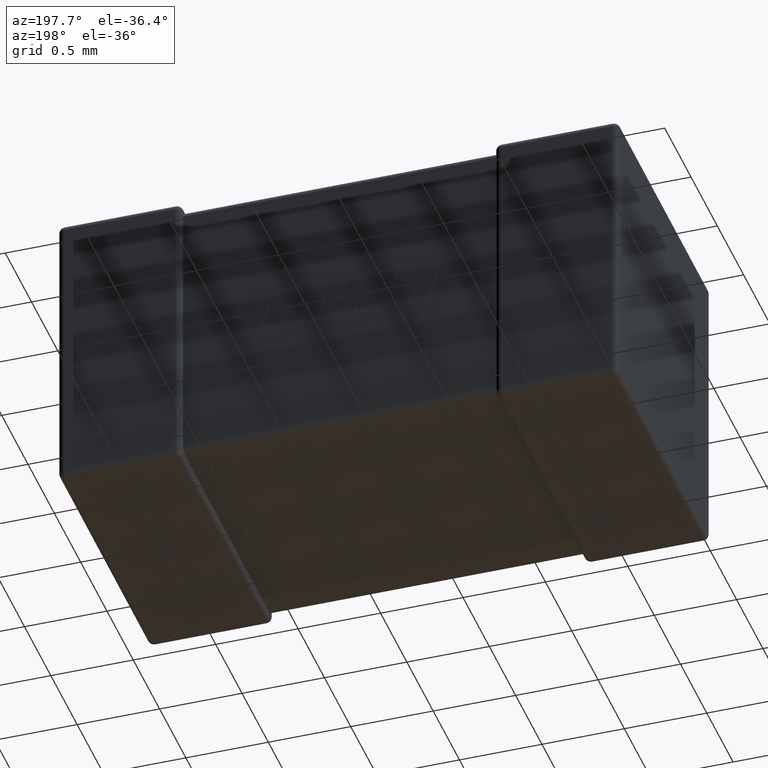
[diagram: clean part render]
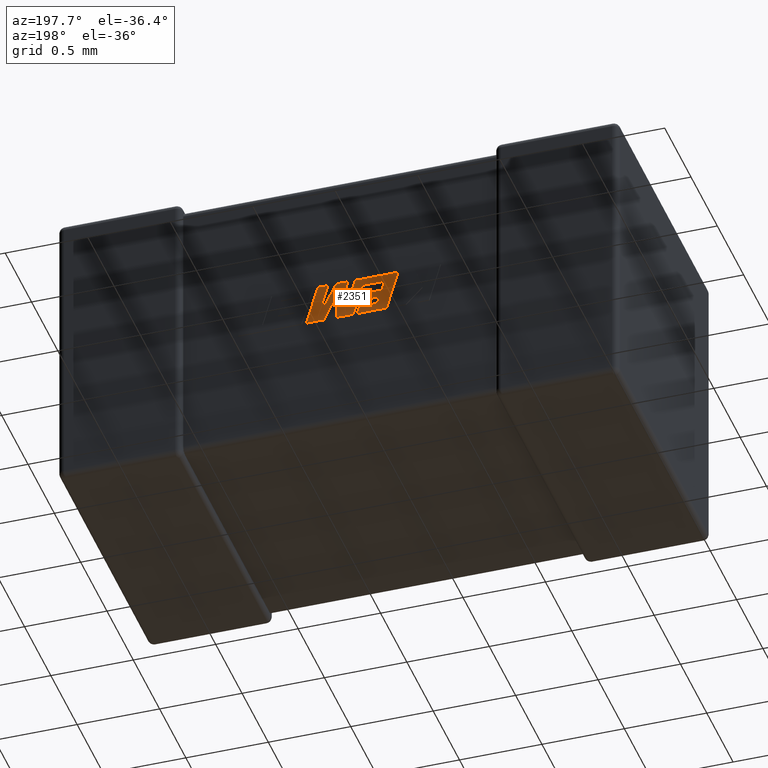
[diagram: same view with one face highlighted and labeled with its STEP entity id]
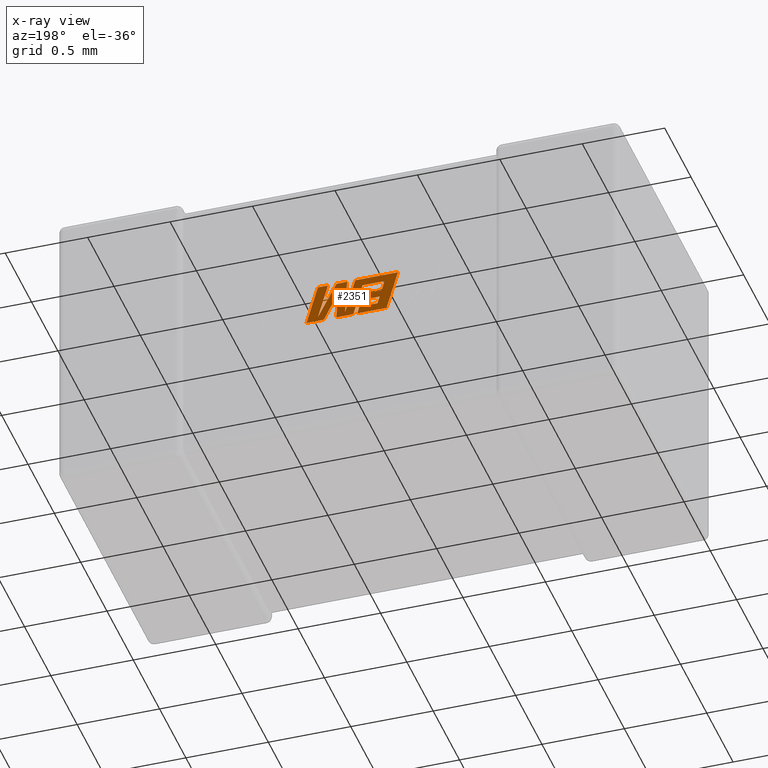
[diagram: x-ray of the same camera — body ghosted, the highlighted face saturated]
A machine part, auxiliary view. The second image highlights one B-rep face of the part: STEP entity #2351.
The next image is the same camera in x-ray: the body ghosted, the highlighted face saturated — about 0% of this face is hidden behind the body in this view.
In plain terms, the highlighted planar face has unit normal (0, -1, 0).
Its self-contained STEP definition (entity closure, byte-faithful):
#21 = CARTESIAN_POINT ( 'NONE',  ( 1.580337707463670000, 1.717560000000000200, -0.9635890723964083400 ) ) ;
#100 = ORIENTED_EDGE ( 'NONE', *, *, #1513, .T. ) ;
#102 = CARTESIAN_POINT ( 'NONE',  ( 1.719205590769775200, 1.717560000000000200, -0.7687799999999998000 ) ) ;
#113 = EDGE_LOOP ( 'NONE', ( #100, #3829, #1203, #4088, #4107, #4353, #212, #1487, #874, #3033, #3250, #3154, #1793, #456, #544, #2512, #4386, #1743, #1193, #4291, #1318, #2064, #3539 ) ) ;
#122 = LINE ( 'NONE', #1679, #1823 ) ;
#157 = VECTOR ( 'NONE', #802, 1000.000000000000000 ) ;
#212 = ORIENTED_EDGE ( 'NONE', *, *, #2875, .T. ) ;
#271 = EDGE_CURVE ( 'NONE', #4204, #4294, #3162, .T. ) ;
#297 = EDGE_CURVE ( 'NONE', #4117, #841, #1607, .T. ) ;
#395 = VECTOR ( 'NONE', #2676, 1000.000000000000200 ) ;
#409 = DIRECTION ( 'NONE',  ( -1.000000000000000000, 0.0000000000000000000, 0.0000000000000000000 ) ) ;
#412 = VECTOR ( 'NONE', #1131, 1000.000000000000000 ) ;
#430 = CARTESIAN_POINT ( 'NONE',  ( 1.580337707463670000, 1.717560000000000200, -0.9635890723964083400 ) ) ;
#456 = ORIENTED_EDGE ( 'NONE', *, *, #887, .T. ) ;
#463 = VECTOR ( 'NONE', #2567, 1000.000000000000200 ) ;
#473 = EDGE_CURVE ( 'NONE', #1529, #2684, #3803, .T. ) ;
#475 = DIRECTION ( 'NONE',  ( 0.0000000000000000000, -1.000000000000000000, 0.0000000000000000000 ) ) ;
#537 = VERTEX_POINT ( 'NONE', #3375 ) ;
#543 = DIRECTION ( 'NONE',  ( -1.000000000000000000, 0.0000000000000000000, 0.0000000000000000000 ) ) ;
#544 = ORIENTED_EDGE ( 'NONE', *, *, #3040, .T. ) ;
#677 = LINE ( 'NONE', #4474, #1706 ) ;
#744 = CARTESIAN_POINT ( 'NONE',  ( 1.457692146891389900, 1.717560000000000200, -0.9188361212786329000 ) ) ;
#773 = EDGE_CURVE ( 'NONE', #2684, #2416, #2508, .T. ) ;
#782 = VERTEX_POINT ( 'NONE', #2200 ) ;
#799 = EDGE_CURVE ( 'NONE', #4380, #3611, #1821, .T. ) ;
#802 = DIRECTION ( 'NONE',  ( 0.4668459304955247000, 0.0000000000000000000, -0.8843386665637592600 ) ) ;
#820 = CARTESIAN_POINT ( 'NONE',  ( 1.667068680722454400, 1.717560000000000200, -0.9829865049792332300 ) ) ;
#837 = VECTOR ( 'NONE', #1353, 1000.000000000000000 ) ;
#841 = VERTEX_POINT ( 'NONE', #744 ) ;
#874 = ORIENTED_EDGE ( 'NONE', *, *, #1225, .T. ) ;
#887 = EDGE_CURVE ( 'NONE', #2416, #1632, #1598, .T. ) ;
#976 = CARTESIAN_POINT ( 'NONE',  ( 1.415592680271959600, 1.717560000000000200, -1.009387468605939600 ) ) ;
#1025 = LINE ( 'NONE', #976, #1970 ) ;
#1042 = CARTESIAN_POINT ( 'NONE',  ( 1.901339830266764100, 1.717560000000000200, -1.009387468605939600 ) ) ;
#1084 = VECTOR ( 'NONE', #2235, 1000.000000000000000 ) ;
#1104 = LINE ( 'NONE', #3995, #2120 ) ;
#1131 = DIRECTION ( 'NONE',  ( 1.000000000000000000, 0.0000000000000000000, 0.0000000000000000000 ) ) ;
#1135 = CARTESIAN_POINT ( 'NONE',  ( 1.470714486032121500, 1.717560000000000200, -0.9635890723964083400 ) ) ;
#1193 = ORIENTED_EDGE ( 'NONE', *, *, #271, .T. ) ;
#1203 = ORIENTED_EDGE ( 'NONE', *, *, #3366, .T. ) ;
#1225 = EDGE_CURVE ( 'NONE', #2076, #4117, #1763, .T. ) ;
#1236 = VERTEX_POINT ( 'NONE', #1662 ) ;
#1302 = CARTESIAN_POINT ( 'NONE',  ( 1.548258857652406600, 1.717560000000000200, -0.8743560540090878900 ) ) ;
#1318 = ORIENTED_EDGE ( 'NONE', *, *, #2921, .T. ) ;
#1353 = DIRECTION ( 'NONE',  ( 1.000000000000000000, 0.0000000000000000000, 0.0000000000000000000 ) ) ;
#1413 = LINE ( 'NONE', #4502, #4394 ) ;
#1432 = CARTESIAN_POINT ( 'NONE',  ( 1.445001950557935200, 1.717560000000000200, -0.8743560540090878900 ) ) ;
#1436 = EDGE_CURVE ( 'NONE', #2967, #4302, #2826, .T. ) ;
#1487 = ORIENTED_EDGE ( 'NONE', *, *, #2735, .T. ) ;
#1491 = VECTOR ( 'NONE', #3794, 999.9999999999998900 ) ;
#1513 = EDGE_CURVE ( 'NONE', #3611, #782, #2268, .T. ) ;
#1529 = VERTEX_POINT ( 'NONE', #1135 ) ;
#1532 = AXIS2_PLACEMENT_3D ( 'NONE', #3704, #475, #1896 ) ;
#1539 = VERTEX_POINT ( 'NONE', #3796 ) ;
#1542 = CARTESIAN_POINT ( 'NONE',  ( 1.427963170861977800, 1.717560000000000200, -0.8145557168552942700 ) ) ;
#1575 = PLANE ( 'NONE',  #1532 ) ;
#1598 = LINE ( 'NONE', #3881, #4195 ) ;
#1607 = LINE ( 'NONE', #1753, #3291 ) ;
#1632 = VERTEX_POINT ( 'NONE', #4152 ) ;
#1662 = CARTESIAN_POINT ( 'NONE',  ( 1.719810770062255800, 1.717560000000000200, -1.009387468605939600 ) ) ;
#1679 = CARTESIAN_POINT ( 'NONE',  ( 1.667068680722454400, 1.717560000000000200, -0.9829865049792332300 ) ) ;
#1706 = VECTOR ( 'NONE', #2338, 1000.000000000000200 ) ;
#1743 = ORIENTED_EDGE ( 'NONE', *, *, #2586, .T. ) ;
#1753 = CARTESIAN_POINT ( 'NONE',  ( 1.560963685827582800, 1.717560000000000200, -0.9188361212786329000 ) ) ;
#1763 = LINE ( 'NONE', #4176, #2552 ) ;
#1793 = ORIENTED_EDGE ( 'NONE', *, *, #773, .T. ) ;
#1821 = LINE ( 'NONE', #4023, #463 ) ;
#1823 = VECTOR ( 'NONE', #3863, 1000.000000000000100 ) ;
#1832 = DIRECTION ( 'NONE',  ( -0.4443210308329503800, 0.0000000000000000000, 0.8958676361826809500 ) ) ;
#1853 = CARTESIAN_POINT ( 'NONE',  ( 1.470714486032121500, 1.717560000000000200, -0.9635890723964083400 ) ) ;
#1896 = DIRECTION ( 'NONE',  ( 0.0000000000000000000, 0.0000000000000000000, -1.000000000000000000 ) ) ;
#1913 = CARTESIAN_POINT ( 'NONE',  ( 1.617344561569602300, 1.717560000000000200, -1.009387468605939600 ) ) ;
#1929 = EDGE_CURVE ( 'NONE', #782, #3385, #1104, .T. ) ;
#1932 = VECTOR ( 'NONE', #2219, 1000.000000000000000 ) ;
#1944 = CARTESIAN_POINT ( 'NONE',  ( 1.719205590769775200, 1.717560000000000200, -0.7687799999999998000 ) ) ;
#1970 = VECTOR ( 'NONE', #3820, 1000.000000000000000 ) ;
#1977 = DIRECTION ( 'NONE',  ( -0.2760118818968593800, 0.0000000000000000000, 0.9611542233438680200 ) ) ;
#2008 = DIRECTION ( 'NONE',  ( 0.2759782365590801600, 0.0000000000000000000, -0.9611638845408936300 ) ) ;
#2064 = ORIENTED_EDGE ( 'NONE', *, *, #2122, .T. ) ;
#2076 = VERTEX_POINT ( 'NONE', #1302 ) ;
#2120 = VECTOR ( 'NONE', #1832, 1000.000000000000000 ) ;
#2122 = EDGE_CURVE ( 'NONE', #537, #4380, #2343, .T. ) ;
#2200 = CARTESIAN_POINT ( 'NONE',  ( 1.795811030974151700, 1.717560000000000200, -1.009387468605939600 ) ) ;
#2219 = DIRECTION ( 'NONE',  ( 0.2732148821746424000, 0.0000000000000000000, -0.9619530280415443700 ) ) ;
#2235 = DIRECTION ( 'NONE',  ( -1.000000000000000000, 0.0000000000000000000, 0.0000000000000000000 ) ) ;
#2259 = VECTOR ( 'NONE', #3175, 1000.000000000000100 ) ;
#2268 = LINE ( 'NONE', #3286, #1084 ) ;
#2278 = CARTESIAN_POINT ( 'NONE',  ( 1.832163408931786400, 1.717560000000000200, -0.7687799999999998000 ) ) ;
#2296 = CARTESIAN_POINT ( 'NONE',  ( 1.561342650527708600, 1.717560000000000200, -0.8145557168552942700 ) ) ;
#2314 = LINE ( 'NONE', #1944, #157 ) ;
#2337 = LINE ( 'NONE', #2346, #1491 ) ;
#2338 = DIRECTION ( 'NONE',  ( 0.2740217765953990600, 0.0000000000000000000, -0.9617234872620618000 ) ) ;
#2343 = LINE ( 'NONE', #3654, #3640 ) ;
#2346 = CARTESIAN_POINT ( 'NONE',  ( 1.457692146891389900, 1.717560000000000200, -0.9188361212786329000 ) ) ;
#2351 = ADVANCED_FACE ( 'NONE', ( #3867 ), #1575, .F. ) ;
#2390 = VERTEX_POINT ( 'NONE', #2296 ) ;
#2416 = VERTEX_POINT ( 'NONE', #3065 ) ;
#2446 = CARTESIAN_POINT ( 'NONE',  ( 1.655061791398066500, 1.717560000000000200, -0.7687799999999998000 ) ) ;
#2508 = LINE ( 'NONE', #430, #1932 ) ;
#2512 = ORIENTED_EDGE ( 'NONE', *, *, #4498, .T. ) ;
#2552 = VECTOR ( 'NONE', #2714, 1000.000000000000100 ) ;
#2567 = DIRECTION ( 'NONE',  ( 0.2763139702539146300, 0.0000000000000000000, -0.9610674221107063900 ) ) ;
#2586 = EDGE_CURVE ( 'NONE', #4302, #4204, #122, .T. ) ;
#2670 = CARTESIAN_POINT ( 'NONE',  ( 1.605563734006848300, 1.717560000000000200, -0.7687799999999998000 ) ) ;
#2676 = DIRECTION ( 'NONE',  ( 0.05375259206908434400, 0.0000000000000000000, -0.9985542843760946100 ) ) ;
#2684 = VERTEX_POINT ( 'NONE', #21 ) ;
#2693 = CARTESIAN_POINT ( 'NONE',  ( 1.346355536600579900, 1.717560000000000200, -0.7687799999999998000 ) ) ;
#2714 = DIRECTION ( 'NONE',  ( 0.2746459304917039400, 0.0000000000000000000, -0.9615454294334439000 ) ) ;
#2732 = CARTESIAN_POINT ( 'NONE',  ( 1.346355536600579900, 1.717560000000000200, -0.7687799999999998000 ) ) ;
#2735 = EDGE_CURVE ( 'NONE', #1539, #2076, #4250, .T. ) ;
#2753 = LINE ( 'NONE', #2794, #2259 ) ;
#2786 = DIRECTION ( 'NONE',  ( 1.000000000000000000, 0.0000000000000000000, 0.0000000000000000000 ) ) ;
#2794 = CARTESIAN_POINT ( 'NONE',  ( 1.617344561569602300, 1.717560000000000200, -1.009387468605939600 ) ) ;
#2824 = VECTOR ( 'NONE', #1977, 1000.000000000000100 ) ;
#2826 = LINE ( 'NONE', #4566, #3682 ) ;
#2837 = DIRECTION ( 'NONE',  ( 1.000000000000000000, 0.0000000000000000000, 0.0000000000000000000 ) ) ;
#2858 = VERTEX_POINT ( 'NONE', #2693 ) ;
#2875 = EDGE_CURVE ( 'NONE', #3349, #1539, #677, .T. ) ;
#2921 = EDGE_CURVE ( 'NONE', #3939, #537, #4464, .T. ) ;
#2942 = VECTOR ( 'NONE', #2837, 1000.000000000000000 ) ;
#2967 = VERTEX_POINT ( 'NONE', #2670 ) ;
#3033 = ORIENTED_EDGE ( 'NONE', *, *, #297, .T. ) ;
#3040 = EDGE_CURVE ( 'NONE', #1632, #2858, #1025, .T. ) ;
#3042 = CARTESIAN_POINT ( 'NONE',  ( 1.710557694836945000, 1.717560000000000200, -0.8374944016071778100 ) ) ;
#3065 = CARTESIAN_POINT ( 'NONE',  ( 1.593345414762693800, 1.717560000000000200, -1.009387468605939600 ) ) ;
#3154 = ORIENTED_EDGE ( 'NONE', *, *, #473, .T. ) ;
#3162 = LINE ( 'NONE', #2446, #3857 ) ;
#3175 = DIRECTION ( 'NONE',  ( -0.2762517575166416100, 0.0000000000000000000, 0.9610853065513833600 ) ) ;
#3250 = ORIENTED_EDGE ( 'NONE', *, *, #3440, .T. ) ;
#3282 = DIRECTION ( 'NONE',  ( 1.000000000000000000, 0.0000000000000000000, 0.0000000000000000000 ) ) ;
#3286 = CARTESIAN_POINT ( 'NONE',  ( 1.901339830266764100, 1.717560000000000200, -1.009387468605939600 ) ) ;
#3291 = VECTOR ( 'NONE', #3929, 1000.000000000000000 ) ;
#3308 = VERTEX_POINT ( 'NONE', #1913 ) ;
#3314 = EDGE_CURVE ( 'NONE', #4294, #3939, #2314, .T. ) ;
#3349 = VERTEX_POINT ( 'NONE', #1542 ) ;
#3366 = EDGE_CURVE ( 'NONE', #3385, #1236, #3896, .T. ) ;
#3375 = CARTESIAN_POINT ( 'NONE',  ( 1.771021331891165400, 1.717560000000000200, -0.7687799999999998000 ) ) ;
#3385 = VERTEX_POINT ( 'NONE', #3042 ) ;
#3401 = CARTESIAN_POINT ( 'NONE',  ( 1.832830620914688700, 1.717560000000000200, -0.9840180498207706800 ) ) ;
#3415 = EDGE_CURVE ( 'NONE', #2390, #3349, #1413, .T. ) ;
#3440 = EDGE_CURVE ( 'NONE', #841, #1529, #2337, .T. ) ;
#3539 = ORIENTED_EDGE ( 'NONE', *, *, #799, .T. ) ;
#3611 = VERTEX_POINT ( 'NONE', #1042 ) ;
#3640 = VECTOR ( 'NONE', #3282, 1000.000000000000000 ) ;
#3654 = CARTESIAN_POINT ( 'NONE',  ( 1.771021331891165400, 1.717560000000000200, -0.7687799999999998000 ) ) ;
#3682 = VECTOR ( 'NONE', #2008, 1000.000000000000100 ) ;
#3704 = CARTESIAN_POINT ( 'NONE',  ( -0.0002255481140237512700, 1.717559999999999800, 0.04035665622677719900 ) ) ;
#3726 = LINE ( 'NONE', #2732, #837 ) ;
#3735 = CARTESIAN_POINT ( 'NONE',  ( 1.832830620914688700, 1.717560000000000200, -0.9840180498207706800 ) ) ;
#3794 = DIRECTION ( 'NONE',  ( 0.2793947940878429000, 0.0000000000000000000, -0.9601763114327556100 ) ) ;
#3796 = CARTESIAN_POINT ( 'NONE',  ( 1.445001950557935200, 1.717560000000000200, -0.8743560540090878900 ) ) ;
#3803 = LINE ( 'NONE', #1853, #412 ) ;
#3820 = DIRECTION ( 'NONE',  ( -0.2765379750249969400, 0.0000000000000000000, 0.9610029908221275900 ) ) ;
#3829 = ORIENTED_EDGE ( 'NONE', *, *, #1929, .T. ) ;
#3857 = VECTOR ( 'NONE', #2786, 1000.000000000000000 ) ;
#3863 = DIRECTION ( 'NONE',  ( -0.05596501978068185000, 0.0000000000000000000, 0.9984327301130245800 ) ) ;
#3867 = FACE_OUTER_BOUND ( 'NONE', #113, .T. ) ;
#3881 = CARTESIAN_POINT ( 'NONE',  ( 1.593345414762693800, 1.717560000000000200, -1.009387468605939600 ) ) ;
#3896 = LINE ( 'NONE', #4120, #395 ) ;
#3906 = DIRECTION ( 'NONE',  ( -1.000000000000000000, 0.0000000000000000000, 0.0000000000000000000 ) ) ;
#3929 = DIRECTION ( 'NONE',  ( -1.000000000000000000, 0.0000000000000000000, 0.0000000000000000000 ) ) ;
#3939 = VERTEX_POINT ( 'NONE', #3401 ) ;
#3995 = CARTESIAN_POINT ( 'NONE',  ( 1.795811030974151700, 1.717560000000000200, -1.009387468605939600 ) ) ;
#4009 = CARTESIAN_POINT ( 'NONE',  ( 1.655061791398066500, 1.717560000000000200, -0.7687799999999998000 ) ) ;
#4023 = CARTESIAN_POINT ( 'NONE',  ( 1.832163408931786400, 1.717560000000000200, -0.7687799999999998000 ) ) ;
#4088 = ORIENTED_EDGE ( 'NONE', *, *, #4262, .T. ) ;
#4107 = ORIENTED_EDGE ( 'NONE', *, *, #4623, .T. ) ;
#4117 = VERTEX_POINT ( 'NONE', #4214 ) ;
#4120 = CARTESIAN_POINT ( 'NONE',  ( 1.710557694836945000, 1.717560000000000200, -0.8374944016071778100 ) ) ;
#4152 = CARTESIAN_POINT ( 'NONE',  ( 1.415592680271959600, 1.717560000000000200, -1.009387468605939600 ) ) ;
#4176 = CARTESIAN_POINT ( 'NONE',  ( 1.548258857652406600, 1.717560000000000200, -0.8743560540090878900 ) ) ;
#4195 = VECTOR ( 'NONE', #3906, 1000.000000000000000 ) ;
#4204 = VERTEX_POINT ( 'NONE', #4009 ) ;
#4214 = CARTESIAN_POINT ( 'NONE',  ( 1.560963685827582800, 1.717560000000000200, -0.9188361212786329000 ) ) ;
#4250 = LINE ( 'NONE', #1432, #2942 ) ;
#4262 = EDGE_CURVE ( 'NONE', #1236, #3308, #4460, .T. ) ;
#4291 = ORIENTED_EDGE ( 'NONE', *, *, #3314, .T. ) ;
#4294 = VERTEX_POINT ( 'NONE', #102 ) ;
#4302 = VERTEX_POINT ( 'NONE', #820 ) ;
#4353 = ORIENTED_EDGE ( 'NONE', *, *, #3415, .T. ) ;
#4380 = VERTEX_POINT ( 'NONE', #2278 ) ;
#4386 = ORIENTED_EDGE ( 'NONE', *, *, #1436, .T. ) ;
#4394 = VECTOR ( 'NONE', #543, 1000.000000000000000 ) ;
#4410 = CARTESIAN_POINT ( 'NONE',  ( 1.719810770062255800, 1.717560000000000200, -1.009387468605939600 ) ) ;
#4460 = LINE ( 'NONE', #4410, #4634 ) ;
#4464 = LINE ( 'NONE', #3735, #2824 ) ;
#4474 = CARTESIAN_POINT ( 'NONE',  ( 1.427963170861977800, 1.717560000000000200, -0.8145557168552942700 ) ) ;
#4498 = EDGE_CURVE ( 'NONE', #2858, #2967, #3726, .T. ) ;
#4502 = CARTESIAN_POINT ( 'NONE',  ( 1.561342650527708600, 1.717560000000000200, -0.8145557168552942700 ) ) ;
#4566 = CARTESIAN_POINT ( 'NONE',  ( 1.605563734006848300, 1.717560000000000200, -0.7687799999999998000 ) ) ;
#4623 = EDGE_CURVE ( 'NONE', #3308, #2390, #2753, .T. ) ;
#4634 = VECTOR ( 'NONE', #409, 1000.000000000000000 ) ;